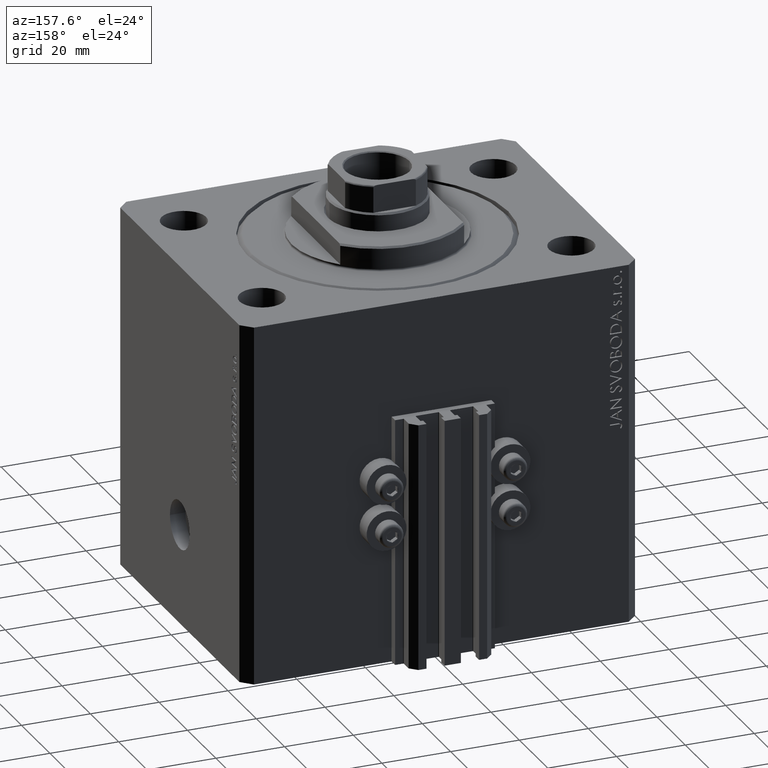
[diagram: clean part render]
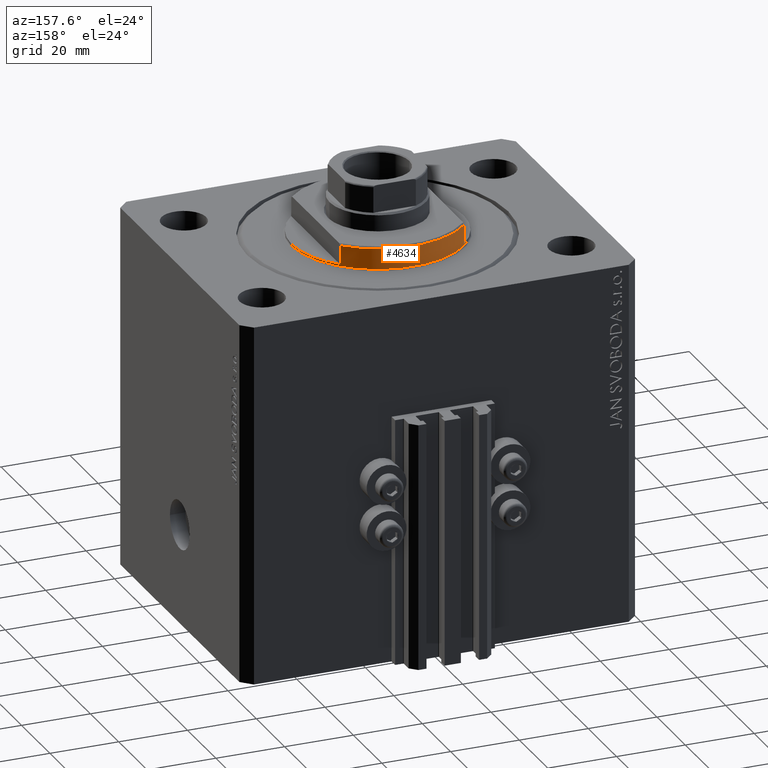
[diagram: same view with one face highlighted and labeled with its STEP entity id]
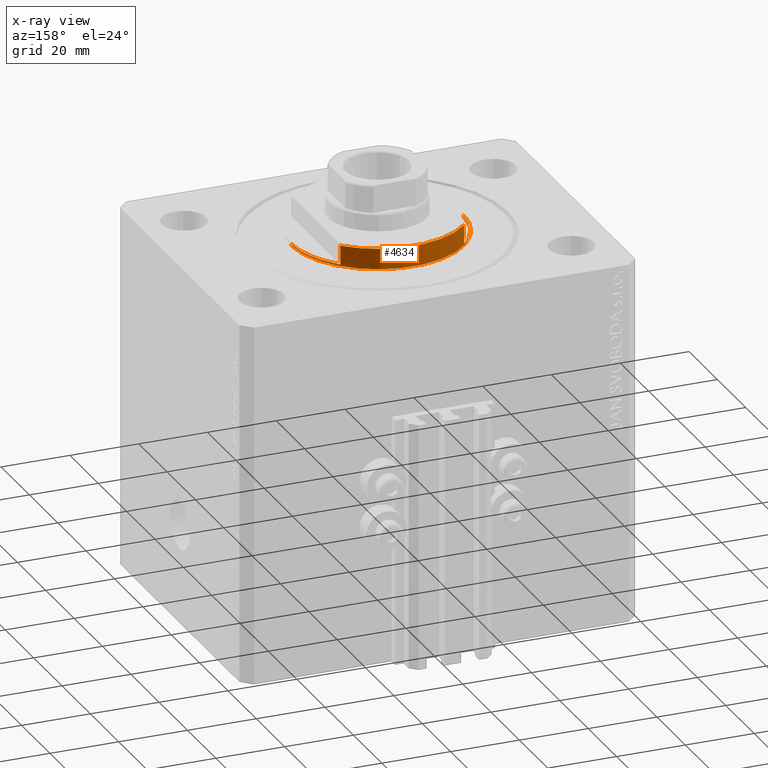
[diagram: x-ray of the same camera — body ghosted, the highlighted face saturated]
A machine part, auxiliary view. The second image highlights one B-rep face of the part: STEP entity #4634.
The next image is the same camera in x-ray: the body ghosted, the highlighted face saturated — about 0% of this face is hidden behind the body in this view.
In plain terms, the highlighted cylindrical surface (partial cylindrical patch) has radius 25 mm, axis along (0, 0, -1).
Its self-contained STEP definition (entity closure, byte-faithful):
#16 = CARTESIAN_POINT ( 'NONE',  ( -18.00000000000000000, 17.34935157289748986, -6.499999999999965361 ) ) ;
#311 = CARTESIAN_POINT ( 'NONE',  ( -18.00000000000000000, 17.34935157289747920, -7.000000000000000000 ) ) ;
#389 = DIRECTION ( 'NONE',  ( 1.000000000000000000, 0.000000000000000000, 0.000000000000000000 ) ) ;
#1294 = DIRECTION ( 'NONE',  ( -0.000000000000000000, -0.000000000000000000, 1.000000000000000000 ) ) ;
#1899 = EDGE_CURVE ( 'NONE', #21647, #14191, #4415, .T. ) ;
#2438 = LINE ( 'NONE', #17015, #43868 ) ;
#2880 = DIRECTION ( 'NONE',  ( -1.000000000000000000, 0.000000000000000000, 0.000000000000000000 ) ) ;
#4251 = DIRECTION ( 'NONE',  ( 0.000000000000000000, 0.000000000000000000, 1.000000000000000000 ) ) ;
#4415 = CIRCLE ( 'NONE', #15846, 25.00000000000000000 ) ;
#4634 = ADVANCED_FACE ( 'NONE', ( #23414 ), #16684, .T. ) ;
#4768 = CARTESIAN_POINT ( 'NONE',  ( -25.00000000000000000, 3.061616997868383043E-15, -1.000000000000000000 ) ) ;
#5207 = VERTEX_POINT ( 'NONE', #37878 ) ;
#6322 = CIRCLE ( 'NONE', #44502, 25.00000000000000000 ) ;
#9518 = DIRECTION ( 'NONE',  ( 1.000000000000000000, 0.000000000000000000, 0.000000000000000000 ) ) ;
#10455 = VERTEX_POINT ( 'NONE', #32955 ) ;
#10501 = EDGE_CURVE ( 'NONE', #5207, #45717, #22285, .T. ) ;
#10739 = CARTESIAN_POINT ( 'NONE',  ( 0.000000000000000000, 0.000000000000000000, -1.000000000000000000 ) ) ;
#11137 = ORIENTED_EDGE ( 'NONE', *, *, #1899, .F. ) ;
#11934 = ORIENTED_EDGE ( 'NONE', *, *, #27155, .T. ) ;
#12612 = CARTESIAN_POINT ( 'NONE',  ( 0.000000000000000000, 0.000000000000000000, -7.000000000000000000 ) ) ;
#14191 = VERTEX_POINT ( 'NONE', #16144 ) ;
#15846 = AXIS2_PLACEMENT_3D ( 'NONE', #37232, #27449, #41067 ) ;
#16144 = CARTESIAN_POINT ( 'NONE',  ( 25.00000000000000000, 0.000000000000000000, -1.000000000000000000 ) ) ;
#16684 = CYLINDRICAL_SURFACE ( 'NONE', #37380, 25.00000000000000000 ) ;
#17015 = CARTESIAN_POINT ( 'NONE',  ( 18.00000000000000000, 17.34935157289747920, -7.000000000000000000 ) ) ;
#18106 = CARTESIAN_POINT ( 'NONE',  ( 0.000000000000000000, 0.000000000000000000, -0.4999999999999995559 ) ) ;
#18972 = AXIS2_PLACEMENT_3D ( 'NONE', #10739, #42845, #2880 ) ;
#19004 = CARTESIAN_POINT ( 'NONE',  ( 25.00000000000000000, 0.000000000000000000, -7.000000000000000000 ) ) ;
#19375 = ORIENTED_EDGE ( 'NONE', *, *, #21062, .F. ) ;
#21062 = EDGE_CURVE ( 'NONE', #34363, #21647, #2438, .T. ) ;
#21133 = VECTOR ( 'NONE', #43638, 1000.000000000000000 ) ;
#21478 = ORIENTED_EDGE ( 'NONE', *, *, #43715, .T. ) ;
#21647 = VERTEX_POINT ( 'NONE', #30801 ) ;
#21869 = LINE ( 'NONE', #311, #29522 ) ;
#22285 = CIRCLE ( 'NONE', #33723, 25.00000000000000000 ) ;
#22941 = ORIENTED_EDGE ( 'NONE', *, *, #27118, .T. ) ;
#23414 = FACE_OUTER_BOUND ( 'NONE', #47372, .T. ) ;
#23444 = VERTEX_POINT ( 'NONE', #16 ) ;
#27118 = EDGE_CURVE ( 'NONE', #23444, #10455, #21869, .T. ) ;
#27155 = EDGE_CURVE ( 'NONE', #35298, #5207, #37153, .T. ) ;
#27239 = CARTESIAN_POINT ( 'NONE',  ( 0.000000000000000000, 0.000000000000000000, -6.499999999999958256 ) ) ;
#27449 = DIRECTION ( 'NONE',  ( 0.000000000000000000, 0.000000000000000000, -1.000000000000000000 ) ) ;
#28678 = ORIENTED_EDGE ( 'NONE', *, *, #37434, .F. ) ;
#29516 = DIRECTION ( 'NONE',  ( -0.000000000000000000, -0.000000000000000000, 1.000000000000000000 ) ) ;
#29522 = VECTOR ( 'NONE', #29516, 1000.000000000000000 ) ;
#30294 = CARTESIAN_POINT ( 'NONE',  ( 25.00000000000000000, 0.000000000000000000, -0.4999999999999995559 ) ) ;
#30347 = DIRECTION ( 'NONE',  ( -0.000000000000000000, -0.000000000000000000, 1.000000000000000000 ) ) ;
#30801 = CARTESIAN_POINT ( 'NONE',  ( 18.00000000000000000, 17.34935157289747920, -1.000000000000000000 ) ) ;
#32651 = CARTESIAN_POINT ( 'NONE',  ( -25.00000000000000000, 3.061616997868383043E-15, -7.000000000000000000 ) ) ;
#32730 = DIRECTION ( 'NONE',  ( -0.000000000000000000, -0.000000000000000000, -1.000000000000000000 ) ) ;
#32955 = CARTESIAN_POINT ( 'NONE',  ( -18.00000000000000000, 17.34935157289747920, -1.000000000000000000 ) ) ;
#33454 = DIRECTION ( 'NONE',  ( -1.000000000000000000, 0.000000000000000000, 0.000000000000000000 ) ) ;
#33723 = AXIS2_PLACEMENT_3D ( 'NONE', #18106, #32730, #389 ) ;
#34285 = CIRCLE ( 'NONE', #18972, 25.00000000000000000 ) ;
#34363 = VERTEX_POINT ( 'NONE', #37918 ) ;
#35298 = VERTEX_POINT ( 'NONE', #4768 ) ;
#35909 = EDGE_CURVE ( 'NONE', #14191, #45717, #44140, .T. ) ;
#37153 = LINE ( 'NONE', #32651, #21133 ) ;
#37232 = CARTESIAN_POINT ( 'NONE',  ( 0.000000000000000000, 0.000000000000000000, -1.000000000000000000 ) ) ;
#37380 = AXIS2_PLACEMENT_3D ( 'NONE', #12612, #30347, #9518 ) ;
#37434 = EDGE_CURVE ( 'NONE', #35298, #10455, #34285, .T. ) ;
#37878 = CARTESIAN_POINT ( 'NONE',  ( -25.00000000000000000, 3.061616997868383043E-15, -0.4999999999999995559 ) ) ;
#37918 = CARTESIAN_POINT ( 'NONE',  ( 18.00000000000000000, 17.34935157289748986, -6.499999999999965361 ) ) ;
#38803 = VECTOR ( 'NONE', #1294, 1000.000000000000000 ) ;
#41067 = DIRECTION ( 'NONE',  ( -1.000000000000000000, 0.000000000000000000, 0.000000000000000000 ) ) ;
#41769 = ORIENTED_EDGE ( 'NONE', *, *, #10501, .T. ) ;
#42845 = DIRECTION ( 'NONE',  ( 0.000000000000000000, 0.000000000000000000, -1.000000000000000000 ) ) ;
#43638 = DIRECTION ( 'NONE',  ( -0.000000000000000000, -0.000000000000000000, 1.000000000000000000 ) ) ;
#43715 = EDGE_CURVE ( 'NONE', #34363, #23444, #6322, .T. ) ;
#43868 = VECTOR ( 'NONE', #45511, 1000.000000000000000 ) ;
#44140 = LINE ( 'NONE', #19004, #38803 ) ;
#44502 = AXIS2_PLACEMENT_3D ( 'NONE', #27239, #4251, #33454 ) ;
#44503 = ORIENTED_EDGE ( 'NONE', *, *, #35909, .F. ) ;
#45511 = DIRECTION ( 'NONE',  ( -0.000000000000000000, -0.000000000000000000, 1.000000000000000000 ) ) ;
#45717 = VERTEX_POINT ( 'NONE', #30294 ) ;
#47372 = EDGE_LOOP ( 'NONE', ( #28678, #11934, #41769, #44503, #11137, #19375, #21478, #22941 ) ) ;